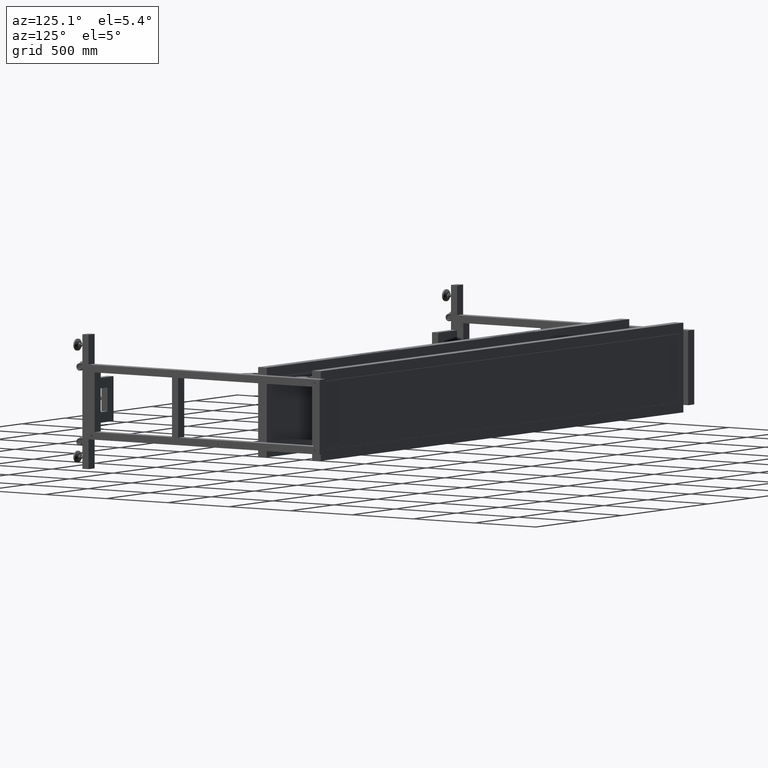
[diagram: clean part render]
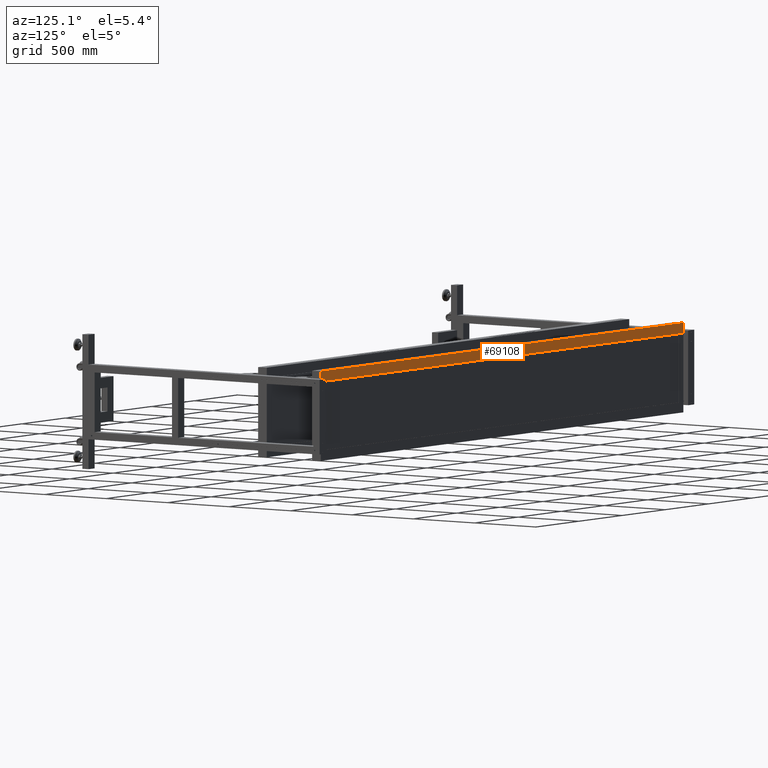
[diagram: same view with one face highlighted and labeled with its STEP entity id]
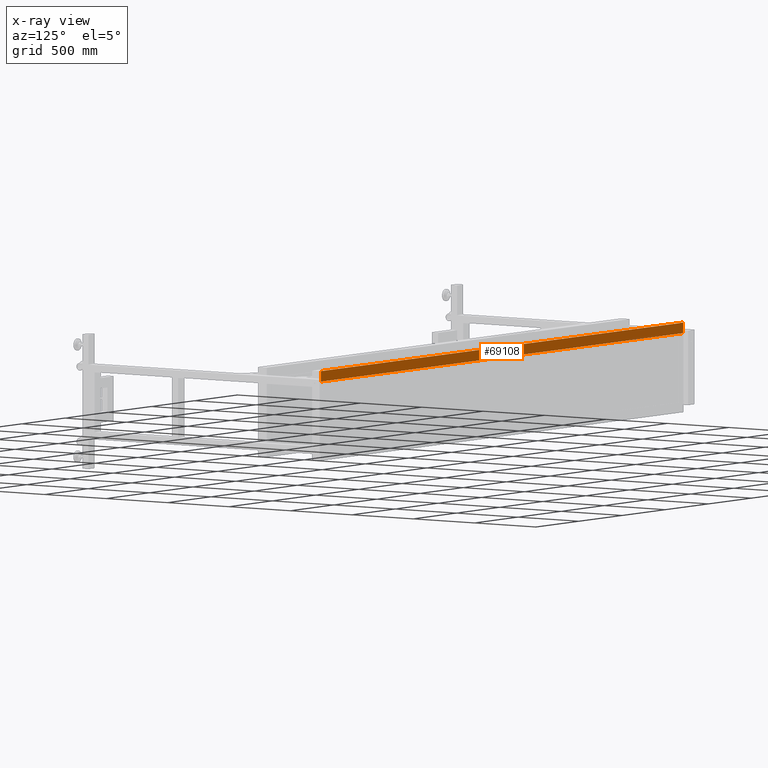
[diagram: x-ray of the same camera — body ghosted, the highlighted face saturated]
A machine part, auxiliary view. The second image highlights one B-rep face of the part: STEP entity #69108.
The next image is the same camera in x-ray: the body ghosted, the highlighted face saturated — about 0% of this face is hidden behind the body in this view.
In plain terms, the highlighted planar face has unit normal (-0, -1, -0).
Its self-contained STEP definition (entity closure, byte-faithful):
#431 = CARTESIAN_POINT ( 'NONE',  ( -266.1724874371843157, 996.9410804020127443, 230.0000000000011653 ) ) ;
#12514 = CARTESIAN_POINT ( 'NONE',  ( 2929.827512562815627, 996.9410804020125170, 300.0000000000011937 ) ) ;
#13533 = ORIENTED_EDGE ( 'NONE', *, *, #44010, .T. ) ;
#14429 = EDGE_LOOP ( 'NONE', ( #65747, #25469, #13533, #22223 ) ) ;
#17868 = VECTOR ( 'NONE', #25476, 1000.000000000000000 ) ;
#18131 = LINE ( 'NONE', #68859, #17868 ) ;
#22223 = ORIENTED_EDGE ( 'NONE', *, *, #77317, .T. ) ;
#22775 = VERTEX_POINT ( 'NONE', #76245 ) ;
#23345 = AXIS2_PLACEMENT_3D ( 'NONE', #431, #25400, #37685 ) ;
#25400 = DIRECTION ( 'NONE',  ( -1.092267369640097868E-16, -1.000000000000000000, -4.000000000000000311E-15 ) ) ;
#25469 = ORIENTED_EDGE ( 'NONE', *, *, #60318, .F. ) ;
#25476 = DIRECTION ( 'NONE',  ( 1.000000000000000000, -1.092267369640097868E-16, 0.000000000000000000 ) ) ;
#30159 = CARTESIAN_POINT ( 'NONE',  ( -1266.172487437185964, 996.9410804020118348, 300.0000000000011937 ) ) ;
#30669 = VERTEX_POINT ( 'NONE', #30159 ) ;
#31942 = FACE_OUTER_BOUND ( 'NONE', #14429, .T. ) ;
#32762 = PLANE ( 'NONE',  #23345 ) ;
#33418 = VECTOR ( 'NONE', #39747, 1000.000000000000000 ) ;
#37685 = DIRECTION ( 'NONE',  ( 1.000000000000000000, -1.092267369640097868E-16, 0.000000000000000000 ) ) ;
#39747 = DIRECTION ( 'NONE',  ( -1.380395921165650489E-30, 4.000000000000000311E-15, -1.000000000000000000 ) ) ;
#41700 = CARTESIAN_POINT ( 'NONE',  ( -266.1724874371843157, 996.9410804020125170, 300.0000000000011937 ) ) ;
#44010 = EDGE_CURVE ( 'NONE', #30669, #76039, #60490, .T. ) ;
#44688 = LINE ( 'NONE', #76610, #33418 ) ;
#47586 = VERTEX_POINT ( 'NONE', #71960 ) ;
#60318 = EDGE_CURVE ( 'NONE', #30669, #47586, #60574, .T. ) ;
#60490 = LINE ( 'NONE', #41700, #74294 ) ;
#60574 = LINE ( 'NONE', #67122, #68165 ) ;
#65747 = ORIENTED_EDGE ( 'NONE', *, *, #78334, .F. ) ;
#66257 = DIRECTION ( 'NONE',  ( 1.000000000000000000, -1.092267369640097868E-16, 0.000000000000000000 ) ) ;
#67122 = CARTESIAN_POINT ( 'NONE',  ( -1266.172487437185964, 996.9410804020120622, 230.0000000000011653 ) ) ;
#68165 = VECTOR ( 'NONE', #74473, 1000.000000000000000 ) ;
#68859 = CARTESIAN_POINT ( 'NONE',  ( -266.1724874371843157, 996.9410804020127443, 230.0000000000011653 ) ) ;
#69108 = ADVANCED_FACE ( 'NONE', ( #31942 ), #32762, .F. ) ;
#71960 = CARTESIAN_POINT ( 'NONE',  ( -1266.172487437185964, 996.9410804020120622, 230.0000000000011653 ) ) ;
#74294 = VECTOR ( 'NONE', #66257, 1000.000000000000000 ) ;
#74473 = DIRECTION ( 'NONE',  ( 0.000000000000000000, 4.000000000000000311E-15, -1.000000000000000000 ) ) ;
#76039 = VERTEX_POINT ( 'NONE', #12514 ) ;
#76245 = CARTESIAN_POINT ( 'NONE',  ( 2929.827512562815627, 996.9410804020127443, 230.0000000000011653 ) ) ;
#76610 = CARTESIAN_POINT ( 'NONE',  ( 2929.827512562815627, 996.9410804020127443, 230.0000000000011653 ) ) ;
#77317 = EDGE_CURVE ( 'NONE', #76039, #22775, #44688, .T. ) ;
#78334 = EDGE_CURVE ( 'NONE', #47586, #22775, #18131, .T. ) ;